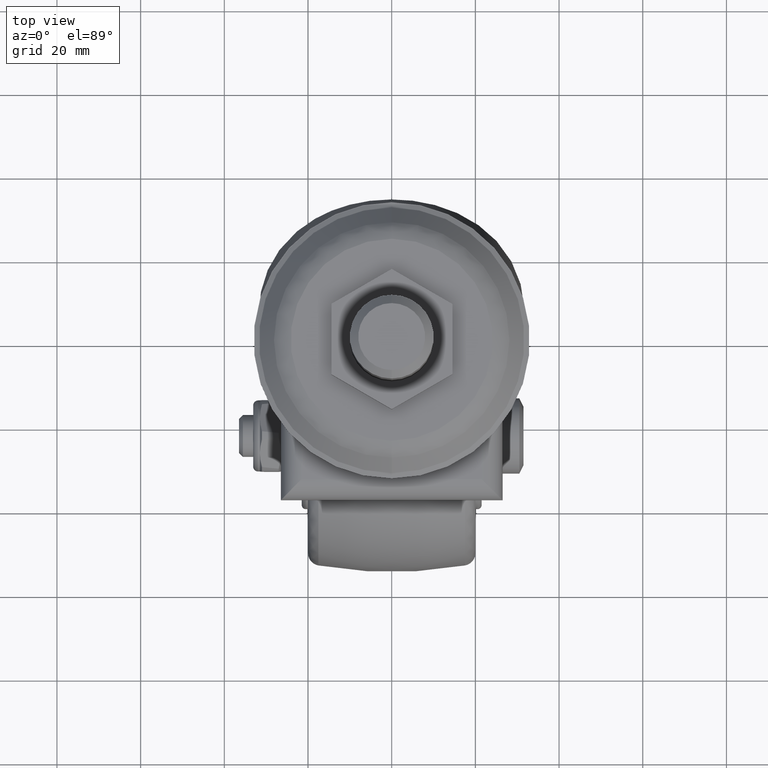
[diagram: clean part render]
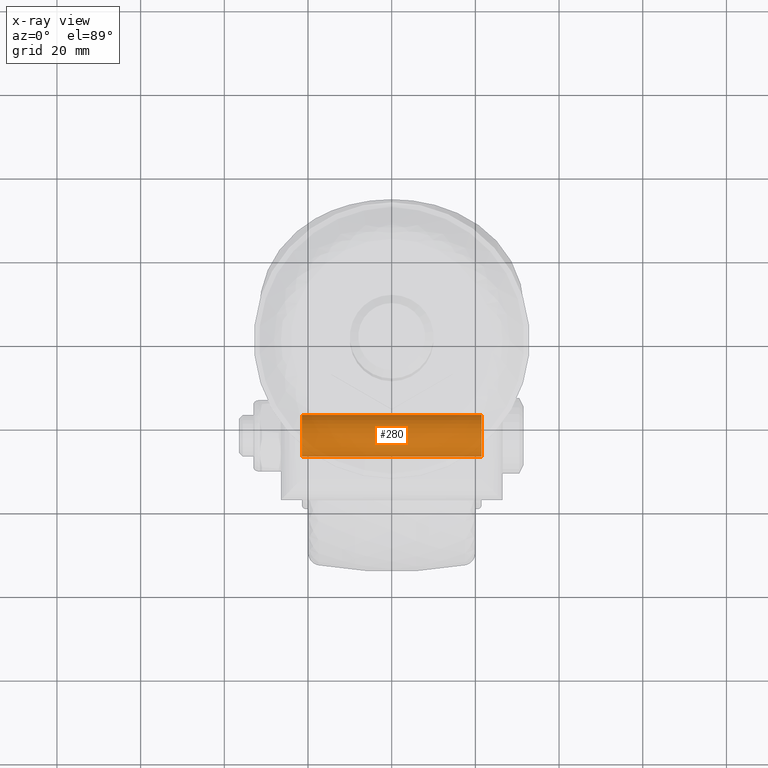
[diagram: x-ray — body ghosted, one internal face saturated and labeled with its STEP entity id]
A machine part, top view, then the same camera in x-ray: the body is ghosted and one INTERNAL B-rep face — a face not visible from any outside direction — is saturated and labeled: STEP entity #280.
In plain terms, the highlighted cylindrical surface (edge-blend (fillet) strip) has radius 5 mm, axis along (-1, 0, -0).
Its self-contained STEP definition (entity closure, byte-faithful):
#280=ADVANCED_FACE('',(#2026),#2025,.F.);
#2025=CYLINDRICAL_SURFACE('',#3651,5.00000000000E+00);
#2026=FACE_OUTER_BOUND('',#3652,.T.);
#3648=CARTESIAN_POINT('',(5.00000000000E+01,0.00000000000E+00,0.00000000000E+00));
#3649=DIRECTION('',(-1.00000000000E+00,-0.00000000000E+00,-0.00000000000E+00));
#3650=DIRECTION('',(-0.00000000000E+00,-0.00000000000E+00,1.00000000000E+00));
#3651=AXIS2_PLACEMENT_3D('',#3648,#3649,#3650);
#3652=EDGE_LOOP('',(#5114,#5115,#5116,#5117));
#5114=ORIENTED_EDGE('',*,*,#5797,.T.);
#5115=ORIENTED_EDGE('',*,*,#5798,.T.);
#5116=ORIENTED_EDGE('',*,*,#5799,.F.);
#5117=ORIENTED_EDGE('',*,*,#5800,.F.);
#5797=EDGE_CURVE('',#9031,#9032,#9033,.T.);
#5798=EDGE_CURVE('',#9032,#9039,#9040,.T.);
#5799=EDGE_CURVE('',#9046,#9039,#9047,.T.);
#5800=EDGE_CURVE('',#9031,#9046,#9053,.T.);
#9031=VERTEX_POINT('',#11815);
#9032=VERTEX_POINT('',#11816);
#9033=CIRCLE('',#11820,5.00000000000E+00);
#9039=VERTEX_POINT('',#11821);
#9040=(BOUNDED_CURVE() B_SPLINE_CURVE(1,(#11822,#11823),.UNSPECIFIED.,.F.,.F.) B_SPLINE_CURVE_WITH_KNOTS((2,2),(8.33333335810E-02,9.16666666255E-01),.UNSPECIFIED.) CURVE() GEOMETRIC_REPRESENTATION_ITEM() RATIONAL_B_SPLINE_CURVE((1.00000000000E+00,1.00000000000E+00)) REPRESENTATION_ITEM('') );
#9046=VERTEX_POINT('',#11824);
#9047=CIRCLE('',#11828,5.00000000000E+00);
#9053=(BOUNDED_CURVE() B_SPLINE_CURVE(1,(#11829,#11830),.UNSPECIFIED.,.F.,.F.) B_SPLINE_CURVE_WITH_KNOTS((2,2),(8.33333333333E-02,9.16666666667E-01),.UNSPECIFIED.) CURVE() GEOMETRIC_REPRESENTATION_ITEM() RATIONAL_B_SPLINE_CURVE((7.50000000000E-01,7.50000000000E-01)) REPRESENTATION_ITEM('') );
#11815=CARTESIAN_POINT('',(2.15000000000E+01,0.00000000000E+00,-5.00000000000E+00));
#11816=CARTESIAN_POINT('',(2.15000000000E+01,2.96059473233E-16,5.00000000000E+00));
#11817=CARTESIAN_POINT('',(2.15000000000E+01,0.00000000000E+00,0.00000000000E+00));
#11818=DIRECTION('',(1.00000000000E+00,0.00000000000E+00,0.00000000000E+00));
#11819=DIRECTION('',(0.00000000000E+00,-1.22460635382E-16,-1.00000000000E+00));
#11820=AXIS2_PLACEMENT_3D('',#11817,#11818,#11819);
#11821=CARTESIAN_POINT('',(-2.15000000000E+01,2.96059473233E-16,5.00000000000E+00));
#11822=CARTESIAN_POINT('',(2.14999999872E+01,0.00000000000E+00,5.00000000000E+00));
#11823=CARTESIAN_POINT('',(-2.14999999788E+01,0.00000000000E+00,5.00000000000E+00));
#11824=CARTESIAN_POINT('',(-2.15000000000E+01,0.00000000000E+00,-5.00000000000E+00));
#11825=CARTESIAN_POINT('',(-2.15000000000E+01,0.00000000000E+00,0.00000000000E+00));
#11826=DIRECTION('',(1.00000000000E+00,0.00000000000E+00,0.00000000000E+00));
#11827=DIRECTION('',(0.00000000000E+00,-1.22460635382E-16,-1.00000000000E+00));
#11828=AXIS2_PLACEMENT_3D('',#11825,#11826,#11827);
#11829=CARTESIAN_POINT('',(2.15000000000E+01,-2.96059473233E-16,-5.00000000000E+00));
#11830=CARTESIAN_POINT('',(-2.15000000000E+01,-2.96059473233E-16,-5.00000000000E+00));